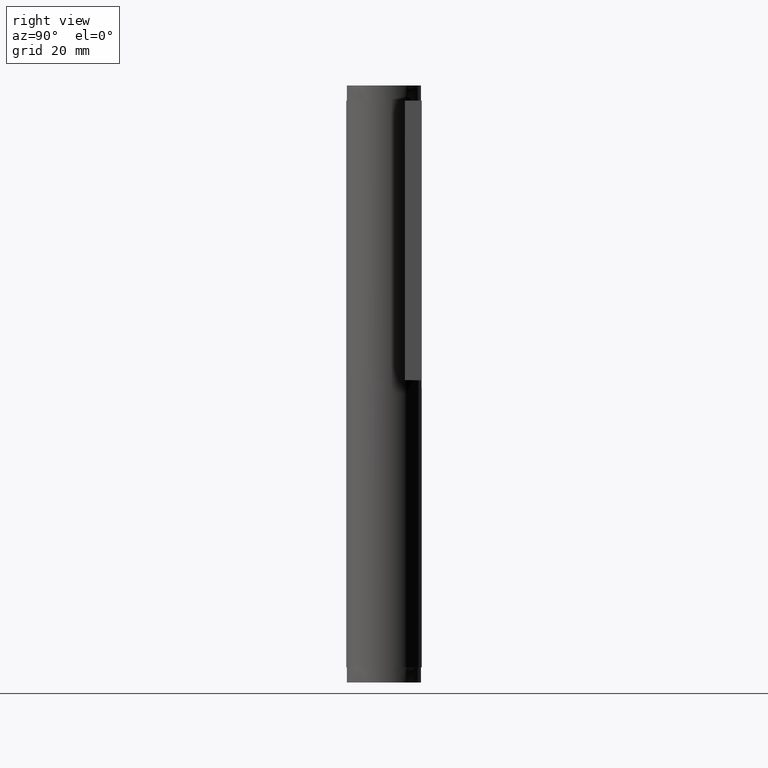
[diagram: clean part render]
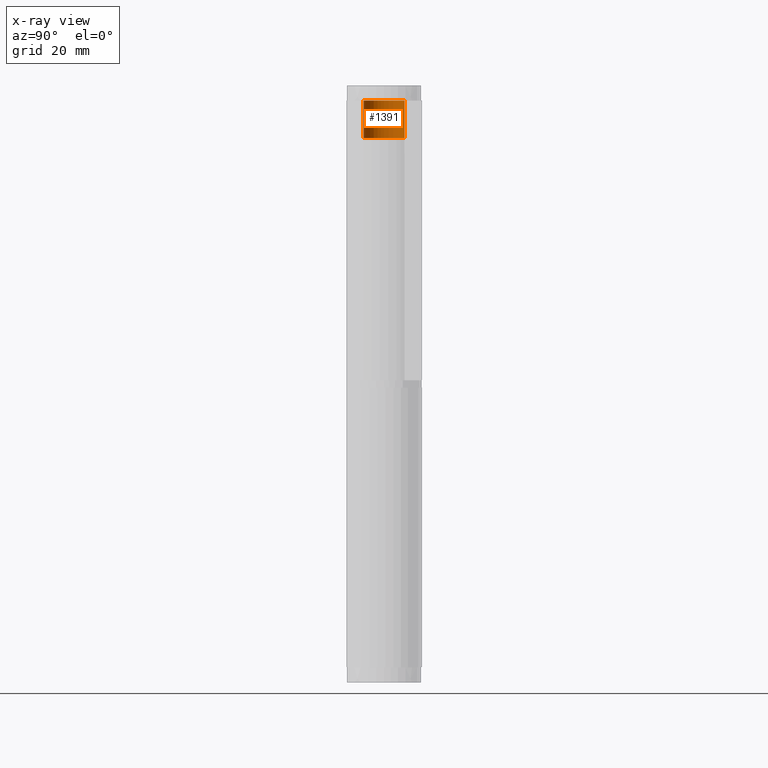
[diagram: x-ray — body ghosted, one internal face saturated and labeled with its STEP entity id]
A machine part, right view, then the same camera in x-ray: the body is ghosted and one INTERNAL B-rep face — a face not visible from any outside direction — is saturated and labeled: STEP entity #1391.
In plain terms, the highlighted face is a freeform B-spline surface patch.
Its self-contained STEP definition (entity closure, byte-faithful):
#1228=CARTESIAN_POINT('',(-0.649187935543185,5.461552437205473,149.999985000000010));
#1229=VERTEX_POINT('',#1228);
#1247=CARTESIAN_POINT('',(0.335766967553985,-5.489741391313402,149.999985000000010));
#1248=VERTEX_POINT('',#1247);
#1262=CARTESIAN_POINT('',(0.335766967553983,-5.489741391313402,139.999985000000010));
#1263=VERTEX_POINT('',#1262);
#1264=CARTESIAN_POINT('',(0.335766967553985,-5.489741391313402,149.999985000000010));
#1265=CARTESIAN_POINT('',(0.335766967553983,-5.489741391313402,139.999985000000010));
#1266=QUASI_UNIFORM_CURVE('',1,(#1264,#1265),.UNSPECIFIED.,.F.,.U.);
#1267=EDGE_CURVE('',#1248,#1263,#1266,.T.);
#1284=CARTESIAN_POINT('',(-0.649187939806426,5.461552436698723,139.999985000000010));
#1285=VERTEX_POINT('',#1284);
#1301=CARTESIAN_POINT('',(-0.649187935543185,5.461552437205473,149.999985000000010));
#1302=CARTESIAN_POINT('',(-0.649187939806426,5.461552436698723,139.999985000000010));
#1303=QUASI_UNIFORM_CURVE('',1,(#1301,#1302),.UNSPECIFIED.,.F.,.U.);
#1304=EDGE_CURVE('',#1229,#1285,#1303,.T.);
#1309=CARTESIAN_POINT('',(0.335766967441713,-5.489741391320267,150.249985000000010));
#1310=CARTESIAN_POINT('',(-5.153974423878553,-5.825508358761980,150.249985000000070));
#1311=CARTESIAN_POINT('',(-5.489741391320267,-0.335766967441713,150.249985000000010));
#1312=CARTESIAN_POINT('',(-5.806824082028901,4.848489199617255,150.249985000000040));
#1313=CARTESIAN_POINT('',(-0.649188290612172,5.461552395000165,150.249985000000040));
#1314=CARTESIAN_POINT('',(0.335766967441713,-5.489741391320267,139.743734999999990));
#1315=CARTESIAN_POINT('',(-5.153974423878553,-5.825508358761980,139.743734999999960));
#1316=CARTESIAN_POINT('',(-5.489741391320267,-0.335766967441713,139.743734999999990));
#1317=CARTESIAN_POINT('',(-5.806824082028901,4.848489199617255,139.743734999999930));
#1318=CARTESIAN_POINT('',(-0.649188290612172,5.461552395000165,139.743734999999930));
#1326=(BOUNDED_SURFACE()B_SPLINE_SURFACE(2,1,((#1309,#1314),(#1310,#1315),(#1311,#1316),(#1312,#1317),(#1313,#1318)),.UNSPECIFIED.,.F.,.F.,.U.)B_SPLINE_SURFACE_WITH_KNOTS((3,2,3),(2,2),(0.0,9.112698372208092,17.860888809527861),(0.0,10.506250000000099),.UNSPECIFIED.)GEOMETRIC_REPRESENTATION_ITEM()RATIONAL_B_SPLINE_SURFACE(((1.0,1.0),(0.707106781186548,0.707106781186548),(1.0,1.0),(0.718822509939086,0.718822509939086),(0.977505800795127,0.977505800795127)))REPRESENTATION_ITEM('')SURFACE());
#1327=CARTESIAN_POINT('',(-5.500000000000000,0.0,149.999985000000010));
#1328=VERTEX_POINT('',#1327);
#1329=CARTESIAN_POINT('',(-5.500000000000000,0.0,149.999985000000010));
#1330=CARTESIAN_POINT('',(-5.500000000000001,4.884960532370497,149.999985000000070));
#1331=CARTESIAN_POINT('',(-0.649187935543185,5.461552437205473,149.999984999999980));
#1339=(BOUNDED_CURVE()B_SPLINE_CURVE(2,(#1329,#1330,#1331),.UNSPECIFIED.,.F.,.U.)B_SPLINE_CURVE_WITH_KNOTS((3,3),(0.0,0.229562495490280),.UNSPECIFIED.)CURVE()GEOMETRIC_REPRESENTATION_ITEM()RATIONAL_B_SPLINE_CURVE((1.0,0.731050807108012,0.956026797259077))REPRESENTATION_ITEM(''));
#1340=EDGE_CURVE('',#1328,#1229,#1339,.T.);
#1341=ORIENTED_EDGE('',*,*,#1340,.T.);
#1342=ORIENTED_EDGE('',*,*,#1304,.T.);
#1343=CARTESIAN_POINT('',(-5.500000000000000,0.0,139.999985000000010));
#1344=VERTEX_POINT('',#1343);
#1345=CARTESIAN_POINT('',(-5.500000000000000,0.0,139.999985000000010));
#1346=CARTESIAN_POINT('',(-5.499999999999999,4.884960524690493,139.999984999999920));
#1347=CARTESIAN_POINT('',(-0.649187939806426,5.461552436698723,139.999985000000040));
#1355=(BOUNDED_CURVE()B_SPLINE_CURVE(2,(#1345,#1346,#1347),.UNSPECIFIED.,.F.,.U.)B_SPLINE_CURVE_WITH_KNOTS((3,3),(0.0,0.229562495226435),.UNSPECIFIED.)CURVE()GEOMETRIC_REPRESENTATION_ITEM()RATIONAL_B_SPLINE_CURVE((1.0,0.731050807417126,0.956026796741929))REPRESENTATION_ITEM(''));
#1356=EDGE_CURVE('',#1344,#1285,#1355,.T.);
#1357=ORIENTED_EDGE('',*,*,#1356,.F.);
#1358=CARTESIAN_POINT('',(0.335766967553983,-5.489741391313402,139.999985000000040));
#1359=CARTESIAN_POINT('',(0.168040198254823,-5.500000000000001,139.999985000000040));
#1360=CARTESIAN_POINT('',(0.0,-5.500000000000000,139.999985000000010));
#1361=CARTESIAN_POINT('',(-5.500000000000001,-5.500000000000001,139.999984999999980));
#1362=CARTESIAN_POINT('',(-5.500000000000000,0.0,139.999985000000010));
#1370=(BOUNDED_CURVE()B_SPLINE_CURVE(2,(#1358,#1359,#1360,#1361,#1362),.UNSPECIFIED.,.F.,.U.)B_SPLINE_CURVE_WITH_KNOTS((3,2,3),(0.739332962234911,0.750000000000000,1.0),.UNSPECIFIED.)CURVE()GEOMETRIC_REPRESENTATION_ITEM()RATIONAL_B_SPLINE_CURVE((0.976072041658076,0.987502787895113,1.0,0.707106781186548,1.0))REPRESENTATION_ITEM(''));
#1371=EDGE_CURVE('',#1263,#1344,#1370,.T.);
#1372=ORIENTED_EDGE('',*,*,#1371,.F.);
#1373=ORIENTED_EDGE('',*,*,#1267,.F.);
#1374=CARTESIAN_POINT('',(0.335766967553985,-5.489741391313403,149.999985000000040));
#1375=CARTESIAN_POINT('',(0.168040198254825,-5.500000000000002,149.999985000000040));
#1376=CARTESIAN_POINT('',(0.0,-5.500000000000000,149.999985000000010));
#1377=CARTESIAN_POINT('',(-5.500000000000001,-5.500000000000001,149.999984999999980));
#1378=CARTESIAN_POINT('',(-5.500000000000000,0.0,149.999985000000010));
#1386=(BOUNDED_CURVE()B_SPLINE_CURVE(2,(#1374,#1375,#1376,#1377,#1378),.UNSPECIFIED.,.F.,.U.)B_SPLINE_CURVE_WITH_KNOTS((3,2,3),(0.739332962234911,0.750000000000000,1.0),.UNSPECIFIED.)CURVE()GEOMETRIC_REPRESENTATION_ITEM()RATIONAL_B_SPLINE_CURVE((0.976072041658076,0.987502787895113,1.0,0.707106781186548,1.0))REPRESENTATION_ITEM(''));
#1387=EDGE_CURVE('',#1248,#1328,#1386,.T.);
#1388=ORIENTED_EDGE('',*,*,#1387,.T.);
#1389=EDGE_LOOP('',(#1341,#1342,#1357,#1372,#1373,#1388));
#1390=FACE_OUTER_BOUND('',#1389,.T.);
#1391=ADVANCED_FACE('',(#1390),#1326,.T.);